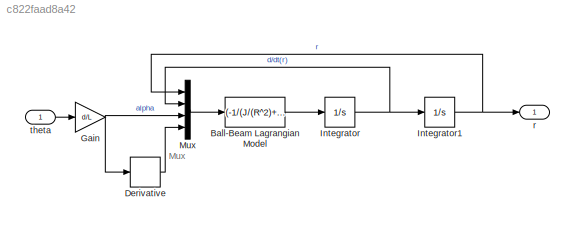
MODEL slx_c822faad8a42
KIND model
CONFIG AbsTol = auto
CONFIG EnableMultiTasking = off
CONFIG FixedStep = auto
CONFIG MaxStep = auto
CONFIG MinStep = auto
CONFIG RelTol = 1e-3
CONFIG SampleTimeConstraint = Unconstrained
CONFIG Solver = ode45
CONFIG SolverName = ode45
CONFIG StartTime = 0.0
CONFIG StopTime = 10.0
BLOCK [Fcn] Ball-Beam Lagrangian Model
  Expr = (-1/(J/(R^2)+m))*(m*g*sin(u[3])-m*u[1]*(u[4])^2)
BLOCK [Derivative] Derivative
BLOCK [Gain] Gain
  Gain = d/L
  OutDataTypeStr = Inherit: Inherit via internal rule
  ParamDataTypeStr = Inherit: Inherit via internal rule
  SaturateOnIntegerOverflow = off
BLOCK [Integrator] Integrator
  Ports = [1, 1]
BLOCK [Integrator] Integrator1
  Ports = [1, 1]
BLOCK [Mux] Mux
  DisplayOption = bar
  Ports = [4, 1]
BLOCK [Outport] r
  IconDisplay = Port number
BLOCK [Inport] theta
  IconDisplay = Port number
ANNOTATION (root): Mux
LINE Ball-Beam Lagrangian Model:1 -> Integrator:1
LINE Derivative:1 -> Mux:4
NET Gain:1 -> Derivative:1, Mux:3
NET Integrator1:1 -> Mux:1, r:1
NET Integrator:1 -> Integrator1:1, Mux:2
LINE Mux:1 -> Ball-Beam Lagrangian Model:1
LINE theta:1 -> Gain:1
note: NET lines group one-source signal fan-out (src -> all destinations, sorted); 1:1 wires keep LINE
